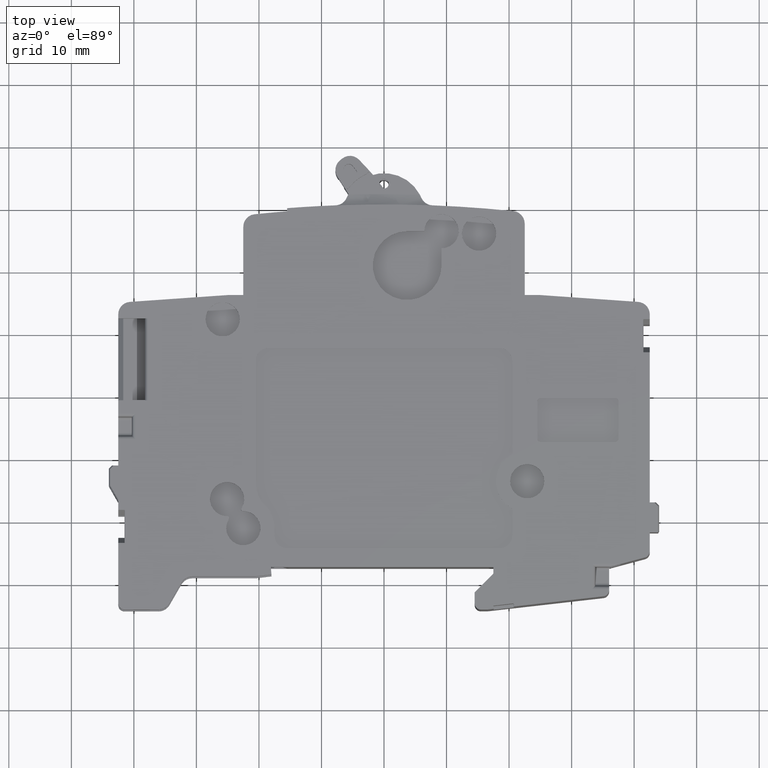
[diagram: clean part render]
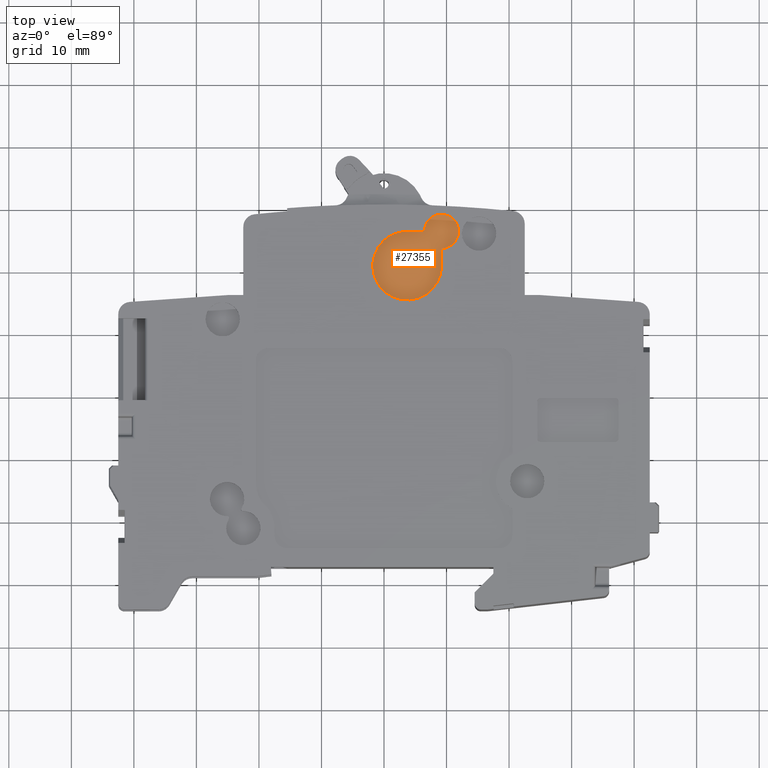
[diagram: same view with one face highlighted and labeled with its STEP entity id]
A machine part, top view. The second image highlights one B-rep face of the part: STEP entity #27355.
In plain terms, the highlighted planar face has unit normal (0, 0, 1).
Its self-contained STEP definition (entity closure, byte-faithful):
#9823=DIRECTION('',(-1.E0,0.E0,0.E0));
#9824=VECTOR('',#9823,2.766927647294E0);
#9825=CARTESIAN_POINT('',(6.466927647294E0,5.62E1,8.15E0));
#9826=LINE('',#9825,#9824);
#9827=DIRECTION('',(0.E0,1.E0,0.E0));
#9828=VECTOR('',#9827,2.766927647294E0);
#9829=CARTESIAN_POINT('',(9.2E0,5.07E1,8.15E0));
#9830=LINE('',#9829,#9828);
#9831=CARTESIAN_POINT('',(3.7E0,5.07E1,8.15E0));
#9832=DIRECTION('',(0.E0,0.E0,1.E0));
#9833=DIRECTION('',(0.E0,1.E0,0.E0));
#9834=AXIS2_PLACEMENT_3D('',#9831,#9832,#9833);
#9841=CARTESIAN_POINT('',(9.2E0,5.62E1,8.15E0));
#9842=DIRECTION('',(0.E0,0.E0,1.E0));
#9843=DIRECTION('',(0.E0,-1.E0,0.E0));
#9844=AXIS2_PLACEMENT_3D('',#9841,#9842,#9843);
#14156=CARTESIAN_POINT('',(6.466927647294E0,5.62E1,8.15E0));
#14157=CARTESIAN_POINT('',(3.7E0,5.62E1,8.15E0));
#14158=VERTEX_POINT('',#14156);
#14159=VERTEX_POINT('',#14157);
#14160=CARTESIAN_POINT('',(9.2E0,5.07E1,8.15E0));
#14161=VERTEX_POINT('',#14160);
#14162=CARTESIAN_POINT('',(9.2E0,5.346692764729E1,8.15E0));
#14163=VERTEX_POINT('',#14162);
#27341=CARTESIAN_POINT('',(-2.75E1,2.5E0,8.15E0));
#27342=DIRECTION('',(0.E0,0.E0,1.E0));
#27343=DIRECTION('',(1.E0,0.E0,0.E0));
#27344=AXIS2_PLACEMENT_3D('',#27341,#27342,#27343);
#27345=PLANE('',#27344);
#27346=ORIENTED_EDGE('',*,*,#27331,.F.);
#27348=ORIENTED_EDGE('',*,*,#27347,.F.);
#27350=ORIENTED_EDGE('',*,*,#27349,.F.);
#27352=ORIENTED_EDGE('',*,*,#27351,.F.);
#27353=EDGE_LOOP('',(#27346,#27348,#27350,#27352));
#27354=FACE_OUTER_BOUND('',#27353,.F.);
#9835=CIRCLE('',#9834,5.5E0);
#9845=CIRCLE('',#9844,2.733072352706E0);
#27331=EDGE_CURVE('',#14158,#14159,#9826,.T.);
#27347=EDGE_CURVE('',#14163,#14158,#9845,.T.);
#27349=EDGE_CURVE('',#14161,#14163,#9830,.T.);
#27351=EDGE_CURVE('',#14159,#14161,#9835,.T.);
#27355=ADVANCED_FACE('',(#27354),#27345,.T.);